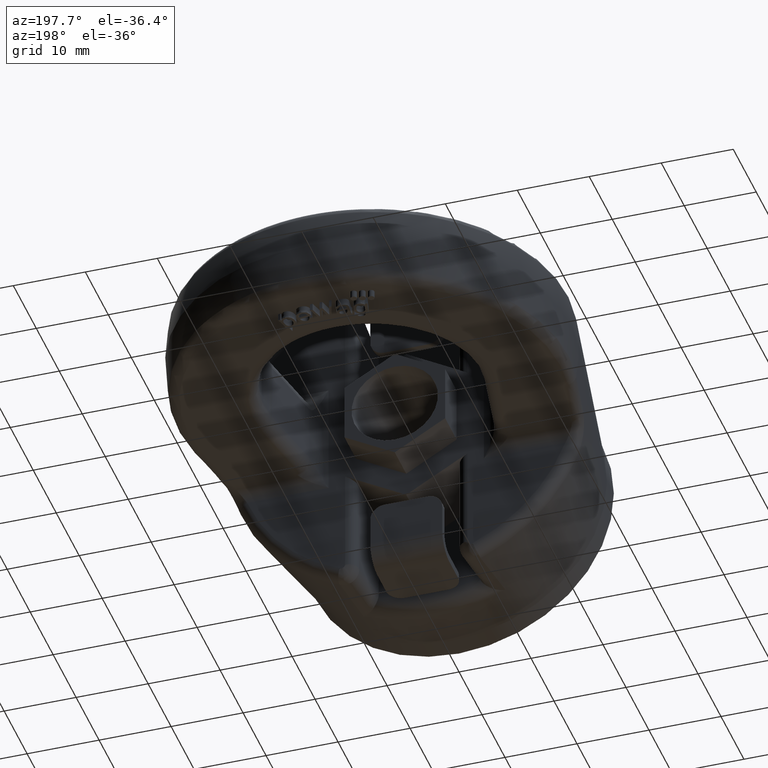
[diagram: clean part render]
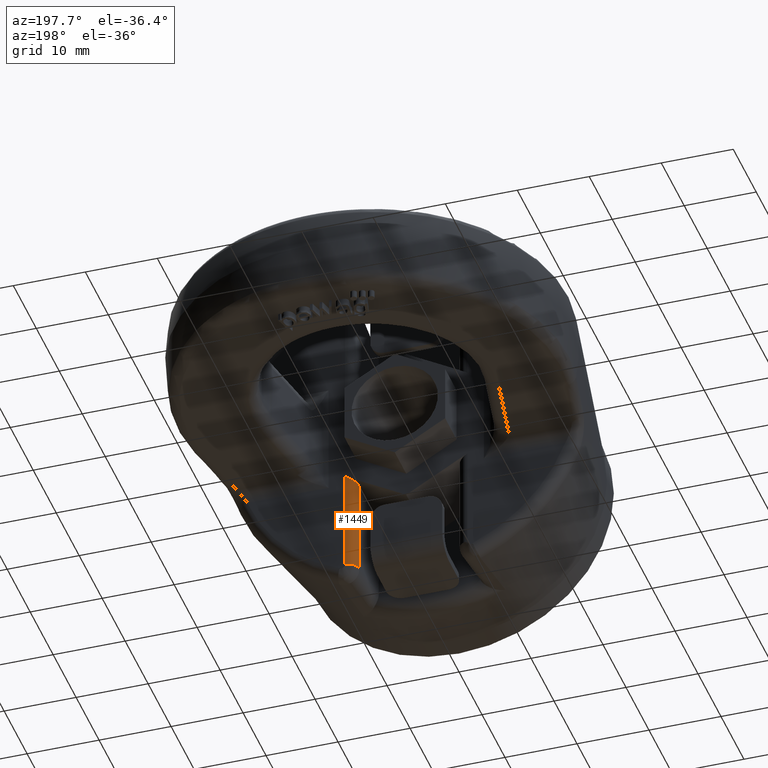
[diagram: same view with one face highlighted and labeled with its STEP entity id]
A machine part, auxiliary view. The second image highlights one B-rep face of the part: STEP entity #1449.
In plain terms, the highlighted cylindrical surface (edge-blend (fillet) strip) has radius 1.5 mm, axis along (0, 0, -1).
Its self-contained STEP definition (entity closure, byte-faithful):
#1063=ELLIPSE('',#5247,1.73205080756888,1.5);
#1084=CYLINDRICAL_SURFACE('',#5257,1.5);
#1216=FACE_OUTER_BOUND('',#1983,.T.);
#1449=ADVANCED_FACE('',(#1216),#1084,.T.);
#1727=CIRCLE('',#5256,1.5);
#1983=EDGE_LOOP('',(#3373,#3374,#3375,#3376));
#2144=LINE('',#6763,#2414);
#2262=LINE('',#8410,#2560);
#2414=VECTOR('',#5475,1.);
#2560=VECTOR('',#5839,1.);
#3373=ORIENTED_EDGE('',*,*,#4623,.F.);
#3374=ORIENTED_EDGE('',*,*,#4355,.F.);
#3375=ORIENTED_EDGE('',*,*,#4634,.F.);
#3376=ORIENTED_EDGE('',*,*,#4608,.F.);
#3967=VERTEX_POINT('',#6762);
#3968=VERTEX_POINT('',#6764);
#4128=VERTEX_POINT('',#8408);
#4130=VERTEX_POINT('',#8411);
#4355=EDGE_CURVE('',#3967,#3968,#2144,.T.);
#4608=EDGE_CURVE('',#4128,#4130,#2262,.T.);
#4623=EDGE_CURVE('',#3968,#4128,#1063,.T.);
#4634=EDGE_CURVE('',#4130,#3967,#1727,.T.);
#5247=AXIS2_PLACEMENT_3D('',#8458,#5864,#5865);
#5256=AXIS2_PLACEMENT_3D('',#8607,#5882,#5883);
#5257=AXIS2_PLACEMENT_3D('',#8608,#5884,#5885);
#5475=DIRECTION('',(-2.34291072916505E-15,0.,1.));
#5839=DIRECTION('',(2.34291072916505E-15,0.,-1.));
#5864=DIRECTION('',(-0.500000000000001,0.,0.866025403784438));
#5865=DIRECTION('',(-0.866025403784438,0.,-0.500000000000001));
#5882=DIRECTION('',(2.34291072916505E-15,0.,-1.));
#5883=DIRECTION('',(-1.,0.,-2.31296463463574E-15));
#5884=DIRECTION('',(2.34291072916505E-15,0.,-1.));
#5885=DIRECTION('',(-1.,0.,-2.31296463463574E-15));
#6762=CARTESIAN_POINT('',(8.50000000000005,23.,-21.1011767892322));
#6763=CARTESIAN_POINT('',(8.50000000000007,23.,-30.25));
#6764=CARTESIAN_POINT('',(8.50000000000001,23.,-6.63952809568067));
#8408=CARTESIAN_POINT('',(7.00000000000002,21.5,-7.50555349946511));
#8410=CARTESIAN_POINT('',(7.00000000000007,21.5,-30.25));
#8411=CARTESIAN_POINT('',(7.00000000000005,21.5,-21.1011767892322));
#8458=CARTESIAN_POINT('',(8.50000000000001,21.5,-6.63952809568067));
#8607=CARTESIAN_POINT('',(8.50000000000005,21.5,-21.1011767892322));
#8608=CARTESIAN_POINT('',(8.50000000000007,21.5,-30.25));